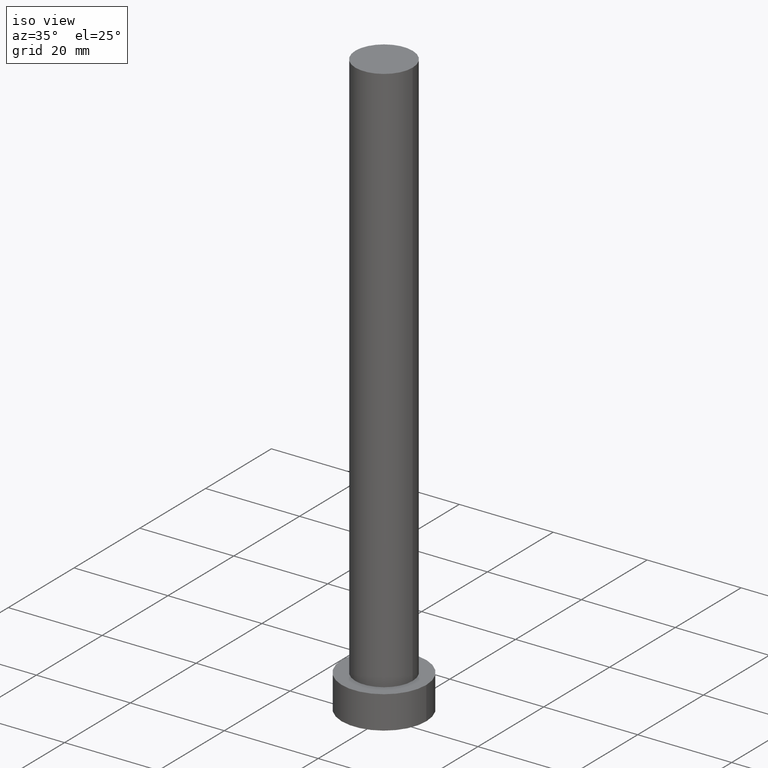
[diagram: clean part render]
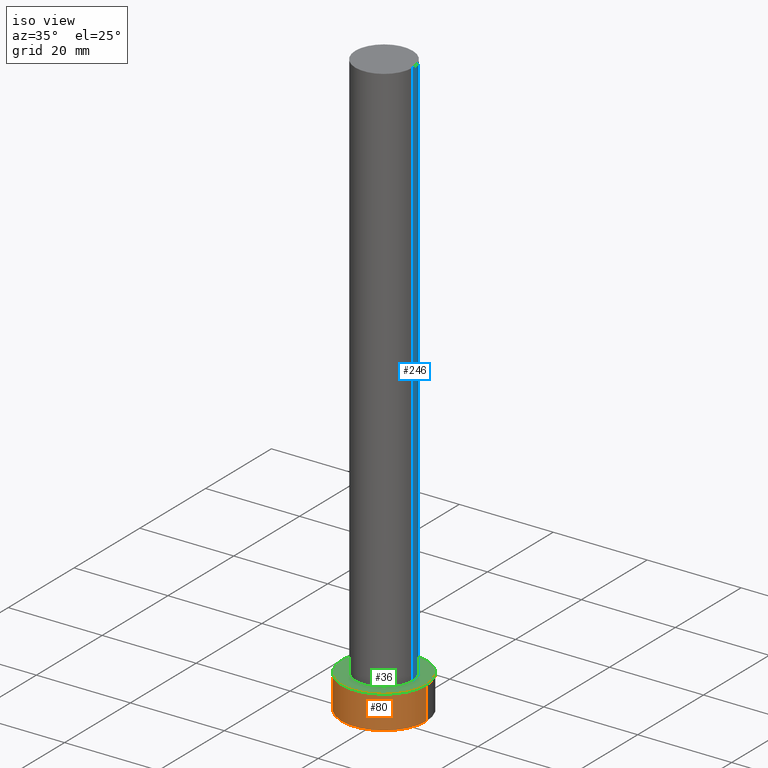
[diagram: same view with three faces highlighted in distinct colors, each labeled with its STEP entity id]
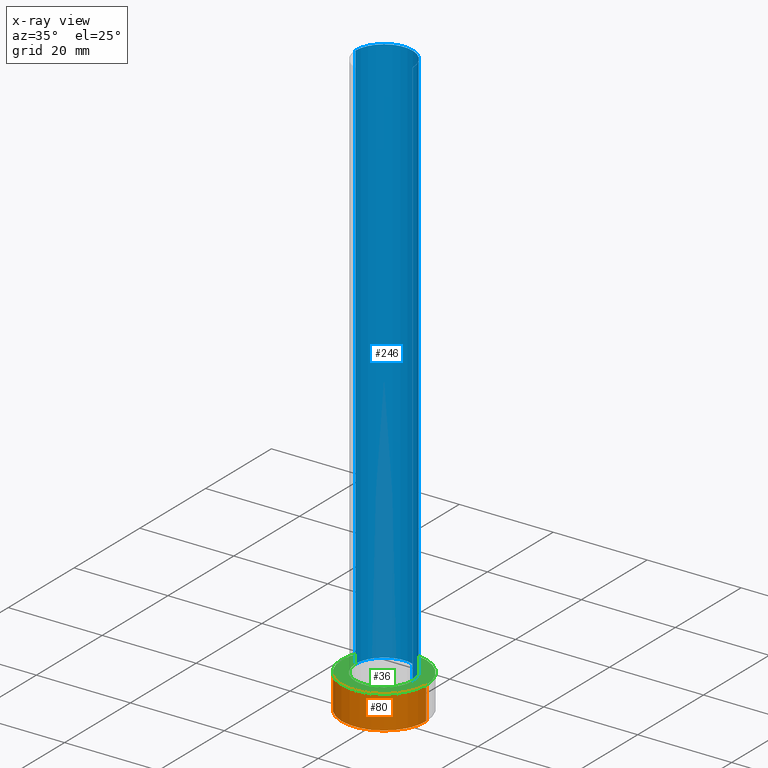
[diagram: x-ray of the same camera — body ghosted, the three highlighted faces saturated]
A machine part, iso view with three faces highlighted in distinct colors.
The next image is the same camera in x-ray (body ghosted, the three faces saturated) — at least one of them is partly hidden behind the body in this view.
Their STEP definitions:

[orange] entity #80 — the highlighted cylindrical surface (partial cylindrical patch) has radius 9 mm, axis along (-0, -0, -1).
#4 = AXIS2_PLACEMENT_3D ( 'NONE', #33, #117, #91 ) ;
#7 = ORIENTED_EDGE ( 'NONE', *, *, #173, .F. ) ;
#15 = CARTESIAN_POINT ( 'NONE',  ( 9.000000000000000000, 1.102182119232617714E-15, 0.000000000000000000 ) ) ;
#33 = CARTESIAN_POINT ( 'NONE',  ( 0.000000000000000000, 0.000000000000000000, 0.000000000000000000 ) ) ;
#35 = CARTESIAN_POINT ( 'NONE',  ( -9.000000000000000000, 0.000000000000000000, 7.000000000000000000 ) ) ;
#43 = DIRECTION ( 'NONE',  ( 1.000000000000000000, 0.000000000000000000, 0.000000000000000000 ) ) ;
#46 = AXIS2_PLACEMENT_3D ( 'NONE', #164, #181, #43 ) ;
#52 = CIRCLE ( 'NONE', #4, 9.000000000000000000 ) ;
#58 = VERTEX_POINT ( 'NONE', #250 ) ;
#59 = ORIENTED_EDGE ( 'NONE', *, *, #239, .T. ) ;
#62 = EDGE_CURVE ( 'NONE', #58, #105, #52, .T. ) ;
#63 = VERTEX_POINT ( 'NONE', #72 ) ;
#72 = CARTESIAN_POINT ( 'NONE',  ( 9.000000000000000000, 1.102182119232617714E-15, 7.000000000000000000 ) ) ;
#77 = LINE ( 'NONE', #236, #95 ) ;
#80 = ADVANCED_FACE ( 'NONE', ( #231 ), #248, .T. ) ;
#85 = ORIENTED_EDGE ( 'NONE', *, *, #145, .F. ) ;
#87 = LINE ( 'NONE', #125, #179 ) ;
#91 = DIRECTION ( 'NONE',  ( 1.000000000000000000, 0.000000000000000000, 0.000000000000000000 ) ) ;
#95 = VECTOR ( 'NONE', #217, 1000.000000000000000 ) ;
#101 = ORIENTED_EDGE ( 'NONE', *, *, #62, .T. ) ;
#105 = VERTEX_POINT ( 'NONE', #15 ) ;
#117 = DIRECTION ( 'NONE',  ( 0.000000000000000000, 0.000000000000000000, 1.000000000000000000 ) ) ;
#125 = CARTESIAN_POINT ( 'NONE',  ( -9.000000000000000000, 0.000000000000000000, 7.000000000000000000 ) ) ;
#126 = CIRCLE ( 'NONE', #46, 9.000000000000000000 ) ;
#134 = DIRECTION ( 'NONE',  ( -0.000000000000000000, -0.000000000000000000, -1.000000000000000000 ) ) ;
#141 = AXIS2_PLACEMENT_3D ( 'NONE', #154, #134, #212 ) ;
#145 = EDGE_CURVE ( 'NONE', #63, #105, #77, .T. ) ;
#150 = VERTEX_POINT ( 'NONE', #35 ) ;
#154 = CARTESIAN_POINT ( 'NONE',  ( 0.000000000000000000, 0.000000000000000000, 7.000000000000000000 ) ) ;
#164 = CARTESIAN_POINT ( 'NONE',  ( 0.000000000000000000, 0.000000000000000000, 7.000000000000000000 ) ) ;
#173 = EDGE_CURVE ( 'NONE', #150, #63, #126, .T. ) ;
#179 = VECTOR ( 'NONE', #187, 1000.000000000000000 ) ;
#181 = DIRECTION ( 'NONE',  ( 0.000000000000000000, 0.000000000000000000, 1.000000000000000000 ) ) ;
#187 = DIRECTION ( 'NONE',  ( -0.000000000000000000, -0.000000000000000000, -1.000000000000000000 ) ) ;
#201 = EDGE_LOOP ( 'NONE', ( #85, #7, #59, #101 ) ) ;
#212 = DIRECTION ( 'NONE',  ( -1.000000000000000000, 0.000000000000000000, 0.000000000000000000 ) ) ;
#217 = DIRECTION ( 'NONE',  ( -0.000000000000000000, -0.000000000000000000, -1.000000000000000000 ) ) ;
#231 = FACE_OUTER_BOUND ( 'NONE', #201, .T. ) ;
#236 = CARTESIAN_POINT ( 'NONE',  ( 9.000000000000000000, 1.102182119232617714E-15, 7.000000000000000000 ) ) ;
#239 = EDGE_CURVE ( 'NONE', #150, #58, #87, .T. ) ;
#248 = CYLINDRICAL_SURFACE ( 'NONE', #141, 9.000000000000000000 ) ;
#250 = CARTESIAN_POINT ( 'NONE',  ( -9.000000000000000000, 0.000000000000000000, 0.000000000000000000 ) ) ;

[blue] entity #246 — the highlighted cylindrical surface (edge-blend (fillet) strip) has radius 6.1 mm, axis along (-0, -0, -1).
#6 = FACE_OUTER_BOUND ( 'NONE', #226, .T. ) ;
#20 = VERTEX_POINT ( 'NONE', #127 ) ;
#22 = DIRECTION ( 'NONE',  ( 0.000000000000000000, 0.000000000000000000, 1.000000000000000000 ) ) ;
#29 = CARTESIAN_POINT ( 'NONE',  ( 6.099999999999999645, 7.470345474798854293E-16, 7.000000000000000000 ) ) ;
#39 = LINE ( 'NONE', #252, #175 ) ;
#49 = DIRECTION ( 'NONE',  ( -1.000000000000000000, 0.000000000000000000, 0.000000000000000000 ) ) ;
#60 = AXIS2_PLACEMENT_3D ( 'NONE', #64, #185, #197 ) ;
#64 = CARTESIAN_POINT ( 'NONE',  ( 0.000000000000000000, 0.000000000000000000, 7.000000000000000000 ) ) ;
#68 = VERTEX_POINT ( 'NONE', #29 ) ;
#69 = DIRECTION ( 'NONE',  ( -0.000000000000000000, -0.000000000000000000, -1.000000000000000000 ) ) ;
#84 = LINE ( 'NONE', #240, #86 ) ;
#86 = VECTOR ( 'NONE', #168, 1000.000000000000000 ) ;
#100 = ORIENTED_EDGE ( 'NONE', *, *, #110, .F. ) ;
#103 = ORIENTED_EDGE ( 'NONE', *, *, #182, .T. ) ;
#106 = CARTESIAN_POINT ( 'NONE',  ( 6.099999999999999645, 7.470345474798854293E-16, 125.0000000000000000 ) ) ;
#107 = ORIENTED_EDGE ( 'NONE', *, *, #198, .F. ) ;
#110 = EDGE_CURVE ( 'NONE', #165, #20, #39, .T. ) ;
#122 = ORIENTED_EDGE ( 'NONE', *, *, #227, .T. ) ;
#127 = CARTESIAN_POINT ( 'NONE',  ( -6.099999999999999645, 0.000000000000000000, 7.000000000000000000 ) ) ;
#137 = DIRECTION ( 'NONE',  ( -0.000000000000000000, -0.000000000000000000, -1.000000000000000000 ) ) ;
#140 = CIRCLE ( 'NONE', #202, 6.099999999999999645 ) ;
#148 = CARTESIAN_POINT ( 'NONE',  ( 0.000000000000000000, 0.000000000000000000, 125.0000000000000000 ) ) ;
#165 = VERTEX_POINT ( 'NONE', #177 ) ;
#168 = DIRECTION ( 'NONE',  ( -0.000000000000000000, -0.000000000000000000, -1.000000000000000000 ) ) ;
#170 = CYLINDRICAL_SURFACE ( 'NONE', #244, 6.099999999999999645 ) ;
#175 = VECTOR ( 'NONE', #137, 1000.000000000000000 ) ;
#177 = CARTESIAN_POINT ( 'NONE',  ( -6.099999999999999645, 0.000000000000000000, 125.0000000000000000 ) ) ;
#182 = EDGE_CURVE ( 'NONE', #68, #20, #230, .T. ) ;
#183 = DIRECTION ( 'NONE',  ( 1.000000000000000000, 0.000000000000000000, 0.000000000000000000 ) ) ;
#185 = DIRECTION ( 'NONE',  ( 0.000000000000000000, 0.000000000000000000, 1.000000000000000000 ) ) ;
#196 = VERTEX_POINT ( 'NONE', #106 ) ;
#197 = DIRECTION ( 'NONE',  ( 1.000000000000000000, 0.000000000000000000, 0.000000000000000000 ) ) ;
#198 = EDGE_CURVE ( 'NONE', #196, #165, #140, .T. ) ;
#202 = AXIS2_PLACEMENT_3D ( 'NONE', #148, #22, #183 ) ;
#226 = EDGE_LOOP ( 'NONE', ( #107, #122, #103, #100 ) ) ;
#227 = EDGE_CURVE ( 'NONE', #196, #68, #84, .T. ) ;
#230 = CIRCLE ( 'NONE', #60, 6.099999999999999645 ) ;
#240 = CARTESIAN_POINT ( 'NONE',  ( 6.099999999999999645, 7.470345474798854293E-16, 125.0000000000000000 ) ) ;
#243 = CARTESIAN_POINT ( 'NONE',  ( 0.000000000000000000, 0.000000000000000000, 125.0000000000000000 ) ) ;
#244 = AXIS2_PLACEMENT_3D ( 'NONE', #243, #69, #49 ) ;
#246 = ADVANCED_FACE ( 'NONE', ( #6 ), #170, .T. ) ;
#252 = CARTESIAN_POINT ( 'NONE',  ( -6.099999999999999645, 0.000000000000000000, 125.0000000000000000 ) ) ;

[green] entity #36 — the highlighted planar face has unit normal (0, 0, 1).
#2 = CARTESIAN_POINT ( 'NONE',  ( 0.000000000000000000, 0.000000000000000000, 7.000000000000000000 ) ) ;
#12 = DIRECTION ( 'NONE',  ( 0.000000000000000000, 0.000000000000000000, 1.000000000000000000 ) ) ;
#20 = VERTEX_POINT ( 'NONE', #127 ) ;
#23 = DIRECTION ( 'NONE',  ( 1.000000000000000000, 0.000000000000000000, 0.000000000000000000 ) ) ;
#29 = CARTESIAN_POINT ( 'NONE',  ( 6.099999999999999645, 7.470345474798854293E-16, 7.000000000000000000 ) ) ;
#30 = FACE_BOUND ( 'NONE', #229, .T. ) ;
#35 = CARTESIAN_POINT ( 'NONE',  ( -9.000000000000000000, 0.000000000000000000, 7.000000000000000000 ) ) ;
#36 = ADVANCED_FACE ( 'NONE', ( #30, #174 ), #249, .T. ) ;
#42 = EDGE_LOOP ( 'NONE', ( #120, #112 ) ) ;
#43 = DIRECTION ( 'NONE',  ( 1.000000000000000000, 0.000000000000000000, 0.000000000000000000 ) ) ;
#46 = AXIS2_PLACEMENT_3D ( 'NONE', #164, #181, #43 ) ;
#51 = CARTESIAN_POINT ( 'NONE',  ( 0.000000000000000000, 0.000000000000000000, 7.000000000000000000 ) ) ;
#53 = AXIS2_PLACEMENT_3D ( 'NONE', #2, #199, #23 ) ;
#60 = AXIS2_PLACEMENT_3D ( 'NONE', #64, #185, #197 ) ;
#61 = AXIS2_PLACEMENT_3D ( 'NONE', #51, #12, #233 ) ;
#63 = VERTEX_POINT ( 'NONE', #72 ) ;
#64 = CARTESIAN_POINT ( 'NONE',  ( 0.000000000000000000, 0.000000000000000000, 7.000000000000000000 ) ) ;
#66 = CIRCLE ( 'NONE', #53, 9.000000000000000000 ) ;
#68 = VERTEX_POINT ( 'NONE', #29 ) ;
#72 = CARTESIAN_POINT ( 'NONE',  ( 9.000000000000000000, 1.102182119232617714E-15, 7.000000000000000000 ) ) ;
#76 = EDGE_CURVE ( 'NONE', #20, #68, #153, .T. ) ;
#112 = ORIENTED_EDGE ( 'NONE', *, *, #215, .T. ) ;
#120 = ORIENTED_EDGE ( 'NONE', *, *, #173, .T. ) ;
#126 = CIRCLE ( 'NONE', #46, 9.000000000000000000 ) ;
#127 = CARTESIAN_POINT ( 'NONE',  ( -6.099999999999999645, 0.000000000000000000, 7.000000000000000000 ) ) ;
#131 = CARTESIAN_POINT ( 'NONE',  ( 0.000000000000000000, 0.000000000000000000, 7.000000000000000000 ) ) ;
#150 = VERTEX_POINT ( 'NONE', #35 ) ;
#153 = CIRCLE ( 'NONE', #61, 6.099999999999999645 ) ;
#161 = ORIENTED_EDGE ( 'NONE', *, *, #182, .F. ) ;
#164 = CARTESIAN_POINT ( 'NONE',  ( 0.000000000000000000, 0.000000000000000000, 7.000000000000000000 ) ) ;
#171 = DIRECTION ( 'NONE',  ( 0.000000000000000000, 0.000000000000000000, 1.000000000000000000 ) ) ;
#173 = EDGE_CURVE ( 'NONE', #150, #63, #126, .T. ) ;
#174 = FACE_OUTER_BOUND ( 'NONE', #42, .T. ) ;
#181 = DIRECTION ( 'NONE',  ( 0.000000000000000000, 0.000000000000000000, 1.000000000000000000 ) ) ;
#182 = EDGE_CURVE ( 'NONE', #68, #20, #230, .T. ) ;
#185 = DIRECTION ( 'NONE',  ( 0.000000000000000000, 0.000000000000000000, 1.000000000000000000 ) ) ;
#197 = DIRECTION ( 'NONE',  ( 1.000000000000000000, 0.000000000000000000, 0.000000000000000000 ) ) ;
#199 = DIRECTION ( 'NONE',  ( 0.000000000000000000, 0.000000000000000000, 1.000000000000000000 ) ) ;
#204 = ORIENTED_EDGE ( 'NONE', *, *, #76, .F. ) ;
#215 = EDGE_CURVE ( 'NONE', #63, #150, #66, .T. ) ;
#228 = AXIS2_PLACEMENT_3D ( 'NONE', #131, #171, #245 ) ;
#229 = EDGE_LOOP ( 'NONE', ( #204, #161 ) ) ;
#230 = CIRCLE ( 'NONE', #60, 6.099999999999999645 ) ;
#233 = DIRECTION ( 'NONE',  ( 1.000000000000000000, 0.000000000000000000, 0.000000000000000000 ) ) ;
#245 = DIRECTION ( 'NONE',  ( 1.000000000000000000, 0.000000000000000000, -0.000000000000000000 ) ) ;
#249 = PLANE ( 'NONE',  #228 ) ;